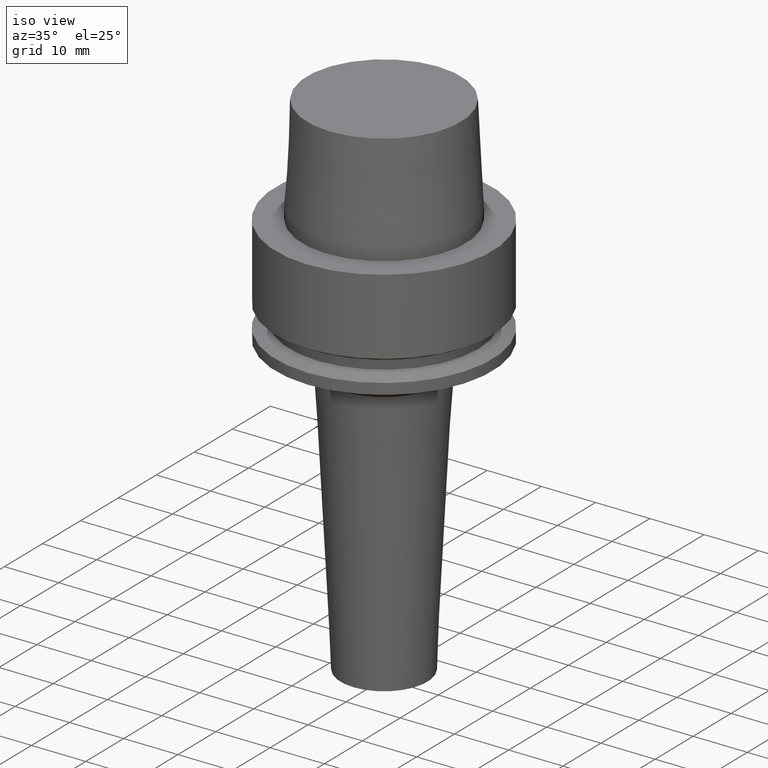
[diagram: clean part render]
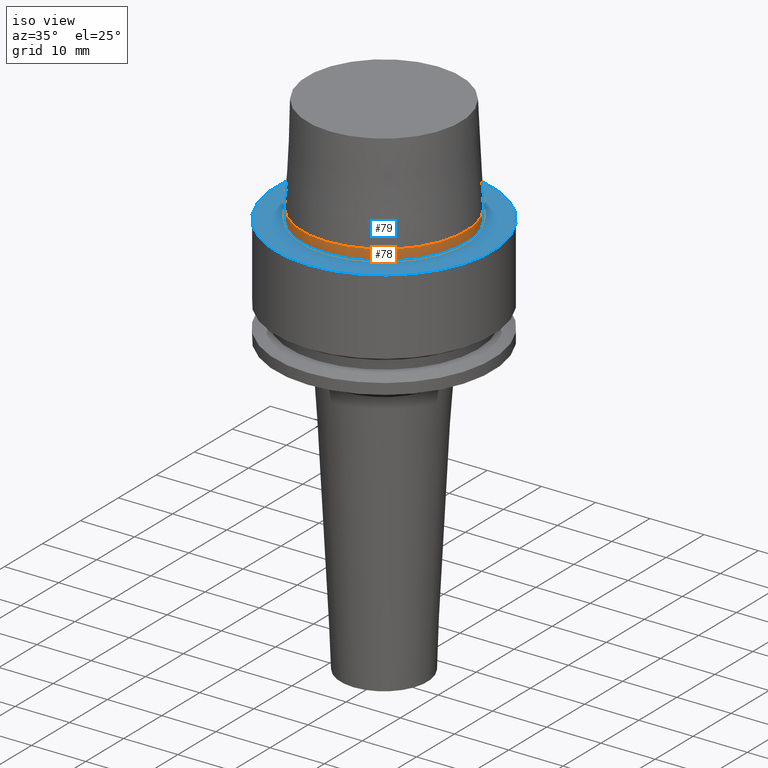
[diagram: same view with the hole feature highlighted: cylindrical wall and planar end face, labeled with their STEP entity ids]
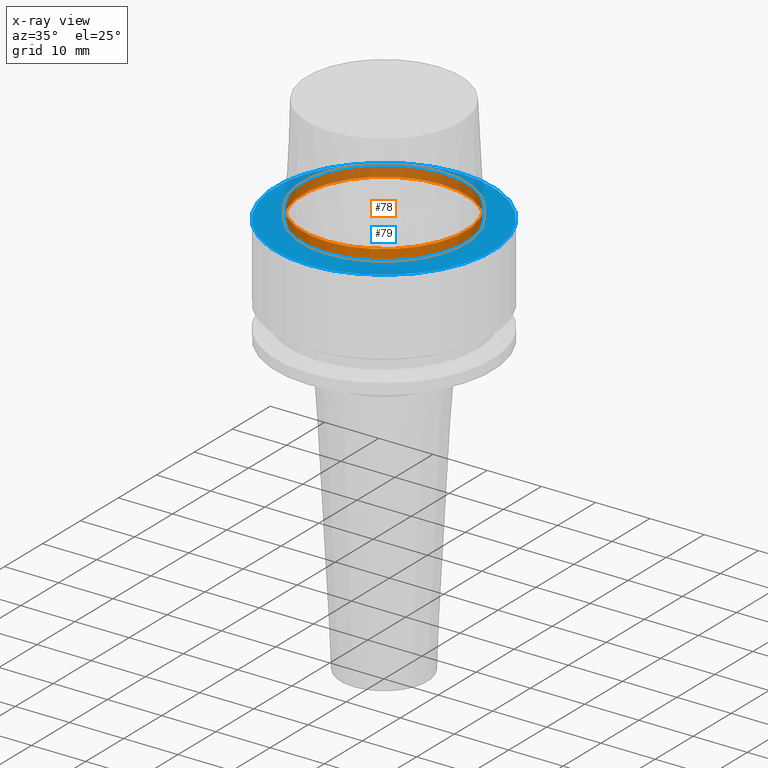
[diagram: x-ray of the same camera — body ghosted, the hole faces saturated]
A machine part, iso view. The highlighted faces form one hole feature of diameter 30.2 mm: the cylindrical wall (entity #78, orange) and its adjacent planar end face (entity #79, blue) — they share a circular edge in the B-rep.
The next image is the same camera in x-ray (body ghosted, the hole faces saturated) — the bore reads through the body.
Wall:
#78=ADVANCED_FACE('',(#98,#99),#100,.T.);
#98=FACE_BOUND('',#141,.T.);
#99=FACE_BOUND('',#142,.T.);
#100=CYLINDRICAL_SURFACE('',#143,15.1);
#141=EDGE_LOOP('',(#190));
#142=EDGE_LOOP('',(#191));
#143=AXIS2_PLACEMENT_3D('',#192,#193,#194);
#190=ORIENTED_EDGE('',*,*,#253,.F.);
#191=ORIENTED_EDGE('',*,*,#252,.T.);
#192=CARTESIAN_POINT('',(-6.12323399573677E-017,-1.22464679914735E-016,1.0));
#193=DIRECTION('',(-6.12323399573677E-017,-1.22464679914735E-016,1.0));
#194=DIRECTION('',(-1.23259516440783E-032,1.0,1.22464679914735E-016));
#252=EDGE_CURVE('',#268,#268,#269,.T.);
#253=EDGE_CURVE('',#270,#270,#271,.T.);
#268=VERTEX_POINT('',#296);
#269=CIRCLE('',#297,15.1);
#270=VERTEX_POINT('',#298);
#271=CIRCLE('',#299,15.1);
#296=CARTESIAN_POINT('',(-1.22464679914736E-016,15.1,2.0));
#297=AXIS2_PLACEMENT_3D('',#326,#327,#328);
#298=CARTESIAN_POINT('',(-1.86121869825582E-031,15.1,1.8492166667125E-015));
#299=AXIS2_PLACEMENT_3D('',#329,#330,#331);
#326=CARTESIAN_POINT('',(-1.22464679914735E-016,-2.44929359829471E-016,2.0));
#327=DIRECTION('',(6.12323399573677E-017,1.22464679914735E-016,-1.0));
#328=DIRECTION('',(-1.23259516440783E-032,1.0,1.22464679914735E-016));
#329=CARTESIAN_POINT('',(0.0,0.0,0.0));
#330=DIRECTION('',(6.12323399573677E-017,1.22464679914735E-016,-1.0));
#331=DIRECTION('',(-1.23259516440783E-032,1.0,1.22464679914735E-016));
End face:
#79=ADVANCED_FACE('',(#101,#102),#103,.T.);
#101=FACE_OUTER_BOUND('',#144,.T.);
#102=FACE_BOUND('',#145,.T.);
#103=PLANE('',#146);
#144=EDGE_LOOP('',(#195));
#145=EDGE_LOOP('',(#196));
#146=AXIS2_PLACEMENT_3D('',#197,#198,#199);
#195=ORIENTED_EDGE('',*,*,#254,.F.);
#196=ORIENTED_EDGE('',*,*,#253,.T.);
#197=CARTESIAN_POINT('',(-2.16320451353574E-031,17.55,2.1492551325036E-015));
#198=DIRECTION('',(-6.12323399573677E-017,-1.22464679914735E-016,1.0));
#199=DIRECTION('',(1.23259516440783E-032,-1.0,-1.22464679914735E-016));
#253=EDGE_CURVE('',#270,#270,#271,.T.);
#254=EDGE_CURVE('',#272,#272,#273,.T.);
#270=VERTEX_POINT('',#298);
#271=CIRCLE('',#299,15.1);
#272=VERTEX_POINT('',#300);
#273=CIRCLE('',#301,20.0);
#298=CARTESIAN_POINT('',(-1.86121869825582E-031,15.1,1.8492166667125E-015));
#299=AXIS2_PLACEMENT_3D('',#329,#330,#331);
#300=CARTESIAN_POINT('',(-2.46519032881566E-031,20.0,2.44929359829471E-015));
#301=AXIS2_PLACEMENT_3D('',#332,#333,#334);
#329=CARTESIAN_POINT('',(0.0,0.0,0.0));
#330=DIRECTION('',(6.12323399573677E-017,1.22464679914735E-016,-1.0));
#331=DIRECTION('',(-1.23259516440783E-032,1.0,1.22464679914735E-016));
#332=CARTESIAN_POINT('',(0.0,0.0,0.0));
#333=DIRECTION('',(6.12323399573677E-017,1.22464679914735E-016,-1.0));
#334=DIRECTION('',(-1.23259516440783E-032,1.0,1.22464679914735E-016));